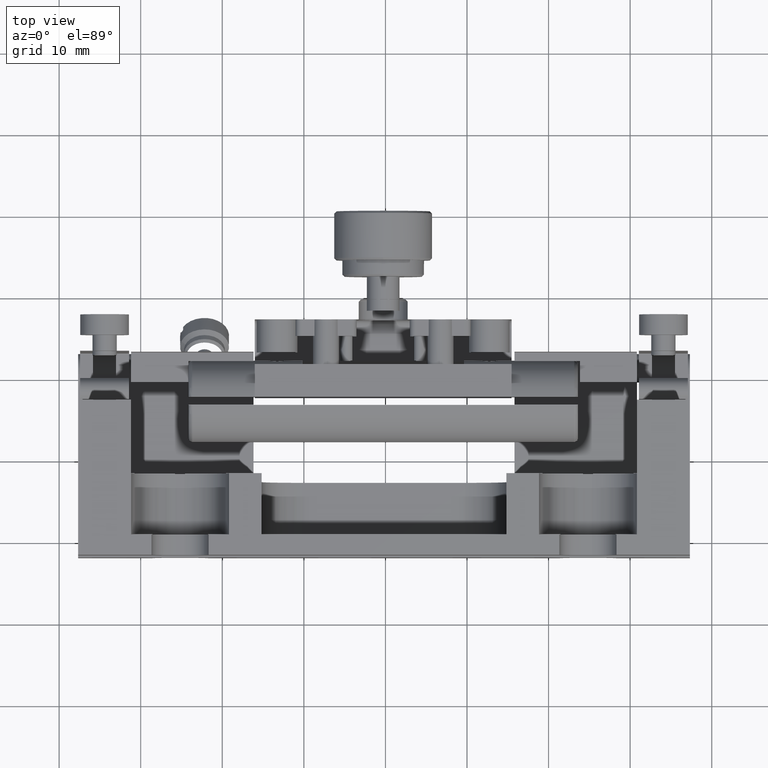
[diagram: clean part render]
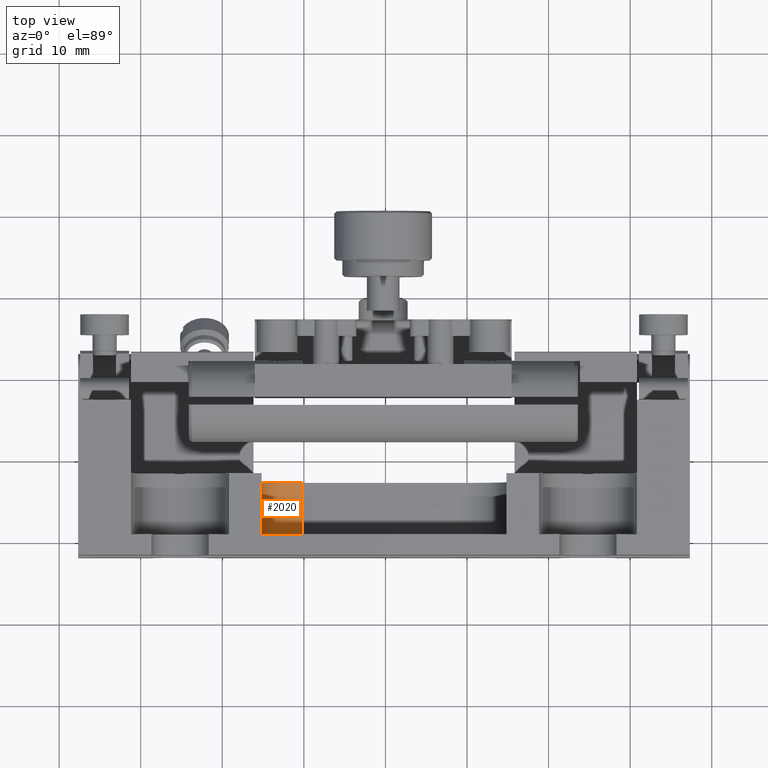
[diagram: same view with one face highlighted and labeled with its STEP entity id]
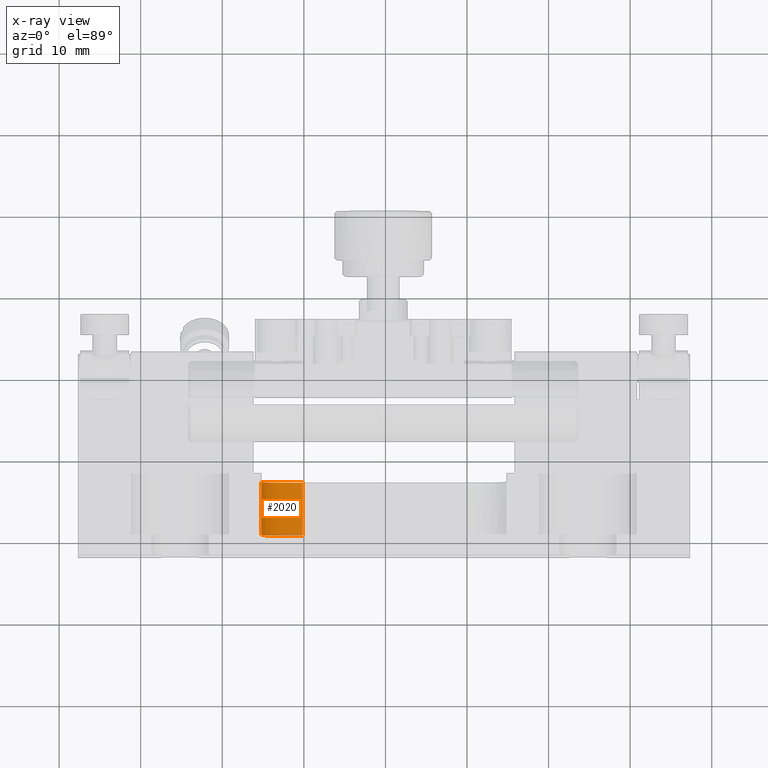
[diagram: x-ray of the same camera — body ghosted, the highlighted face saturated]
A machine part, top view. The second image highlights one B-rep face of the part: STEP entity #2020.
The next image is the same camera in x-ray: the body ghosted, the highlighted face saturated — about 2% of this face is hidden behind the body in this view.
In plain terms, the highlighted cylindrical surface (partial cylindrical patch) has radius 5 mm, axis along (0, -1, 0).
Its self-contained STEP definition (entity closure, byte-faithful):
#169 = AXIS2_PLACEMENT_3D ( 'NONE', #14670, #4962, #659 ) ;
#198 = FACE_OUTER_BOUND ( 'NONE', #12104, .T. ) ;
#659 = DIRECTION ( 'NONE',  ( 0.000000000000000000, 0.000000000000000000, -1.000000000000000000 ) ) ;
#702 = VERTEX_POINT ( 'NONE', #7940 ) ;
#953 = ORIENTED_EDGE ( 'NONE', *, *, #14320, .F. ) ;
#1199 = DIRECTION ( 'NONE',  ( 0.000000000000000000, -1.000000000000000000, 0.000000000000000000 ) ) ;
#1269 = EDGE_CURVE ( 'NONE', #3886, #702, #6157, .T. ) ;
#1305 = DIRECTION ( 'NONE',  ( -0.000000000000000000, 1.000000000000000000, -0.000000000000000000 ) ) ;
#1713 = DIRECTION ( 'NONE',  ( 0.000000000000000000, 0.000000000000000000, -1.000000000000000000 ) ) ;
#1726 = CARTESIAN_POINT ( 'NONE',  ( 9.826345966282490352, 30.67343476192750629, 72.68264947075056170 ) ) ;
#2020 = ADVANCED_FACE ( 'NONE', ( #198 ), #4800, .F. ) ;
#2397 = AXIS2_PLACEMENT_3D ( 'NONE', #15624, #6225, #1713 ) ;
#2906 = LINE ( 'NONE', #18254, #7079 ) ;
#3886 = VERTEX_POINT ( 'NONE', #14041 ) ;
#4615 = DIRECTION ( 'NONE',  ( 0.000000000000000000, 1.000000000000000000, 0.000000000000000000 ) ) ;
#4800 = CYLINDRICAL_SURFACE ( 'NONE', #17252, 5.000000000000004441 ) ;
#4962 = DIRECTION ( 'NONE',  ( 0.000000000000000000, -1.000000000000000000, 0.000000000000000000 ) ) ;
#5395 = CIRCLE ( 'NONE', #169, 5.000000000000004441 ) ;
#5883 = CARTESIAN_POINT ( 'NONE',  ( 9.826345966282490352, 37.17343476192750984, 67.68264947075056170 ) ) ;
#6157 = LINE ( 'NONE', #18618, #15544 ) ;
#6225 = DIRECTION ( 'NONE',  ( 0.000000000000000000, -1.000000000000000000, 0.000000000000000000 ) ) ;
#7079 = VECTOR ( 'NONE', #19785, 1000.000000000000000 ) ;
#7940 = CARTESIAN_POINT ( 'NONE',  ( 4.826345966282489464, 38.17343476192750984, 72.68264947075056170 ) ) ;
#8389 = CIRCLE ( 'NONE', #15223, 5.000000000000004441 ) ;
#8638 = VERTEX_POINT ( 'NONE', #19423 ) ;
#8682 = LINE ( 'NONE', #10306, #13615 ) ;
#9596 = VERTEX_POINT ( 'NONE', #15231 ) ;
#10053 = ORIENTED_EDGE ( 'NONE', *, *, #18612, .F. ) ;
#10306 = CARTESIAN_POINT ( 'NONE',  ( 4.832599877422940615, 30.67343476192750629, 72.43264947075056170 ) ) ;
#10381 = ORIENTED_EDGE ( 'NONE', *, *, #15257, .F. ) ;
#10715 = DIRECTION ( 'NONE',  ( 0.000000000000000000, -1.000000000000000000, 0.000000000000000000 ) ) ;
#10920 = DIRECTION ( 'NONE',  ( 0.000000000000000000, 0.000000000000000000, -1.000000000000000000 ) ) ;
#11458 = CARTESIAN_POINT ( 'NONE',  ( 4.832599877422939727, 38.17343476192750984, 72.43264947075056170 ) ) ;
#11749 = EDGE_CURVE ( 'NONE', #9596, #14297, #15794, .T. ) ;
#11950 = DIRECTION ( 'NONE',  ( 0.000000000000000000, 0.000000000000000000, -1.000000000000000000 ) ) ;
#12104 = EDGE_LOOP ( 'NONE', ( #953, #12441, #10381, #10053, #14059, #15701 ) ) ;
#12441 = ORIENTED_EDGE ( 'NONE', *, *, #11749, .F. ) ;
#12817 = EDGE_CURVE ( 'NONE', #8638, #3886, #8389, .T. ) ;
#13615 = VECTOR ( 'NONE', #1199, 1000.000000000000000 ) ;
#14041 = CARTESIAN_POINT ( 'NONE',  ( 4.826345966282489464, 30.67343476192750629, 72.68264947075056170 ) ) ;
#14059 = ORIENTED_EDGE ( 'NONE', *, *, #1269, .F. ) ;
#14297 = VERTEX_POINT ( 'NONE', #5883 ) ;
#14320 = EDGE_CURVE ( 'NONE', #14297, #8638, #2906, .T. ) ;
#14670 = CARTESIAN_POINT ( 'NONE',  ( 9.826345966282490352, 38.17343476192750984, 72.68264947075056170 ) ) ;
#15223 = AXIS2_PLACEMENT_3D ( 'NONE', #16657, #1305, #11950 ) ;
#15231 = CARTESIAN_POINT ( 'NONE',  ( 4.832599877422939727, 37.17343476192750984, 72.43264947075056170 ) ) ;
#15257 = EDGE_CURVE ( 'NONE', #19088, #9596, #8682, .T. ) ;
#15544 = VECTOR ( 'NONE', #4615, 1000.000000000000000 ) ;
#15624 = CARTESIAN_POINT ( 'NONE',  ( 9.826345966282490352, 37.17343476192750984, 72.68264947075056170 ) ) ;
#15701 = ORIENTED_EDGE ( 'NONE', *, *, #12817, .F. ) ;
#15794 = CIRCLE ( 'NONE', #2397, 5.000000000000004441 ) ;
#16657 = CARTESIAN_POINT ( 'NONE',  ( 9.826345966282490352, 30.67343476192750629, 72.68264947075056170 ) ) ;
#17252 = AXIS2_PLACEMENT_3D ( 'NONE', #1726, #10715, #10920 ) ;
#18254 = CARTESIAN_POINT ( 'NONE',  ( 9.826345966282490352, 30.67343476192750629, 67.68264947075056170 ) ) ;
#18612 = EDGE_CURVE ( 'NONE', #702, #19088, #5395, .T. ) ;
#18618 = CARTESIAN_POINT ( 'NONE',  ( 4.826345966282489464, 30.67343476192750629, 72.68264947075056170 ) ) ;
#19088 = VERTEX_POINT ( 'NONE', #11458 ) ;
#19423 = CARTESIAN_POINT ( 'NONE',  ( 9.826345966282490352, 30.67343476192750629, 67.68264947075056170 ) ) ;
#19785 = DIRECTION ( 'NONE',  ( 0.000000000000000000, -1.000000000000000000, -0.000000000000000000 ) ) ;